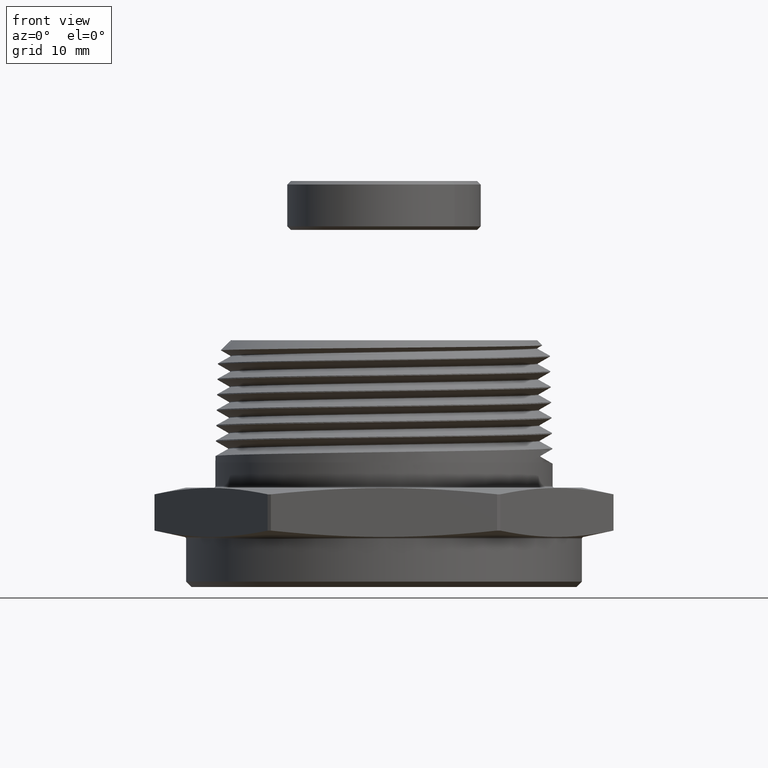
[diagram: clean part render]
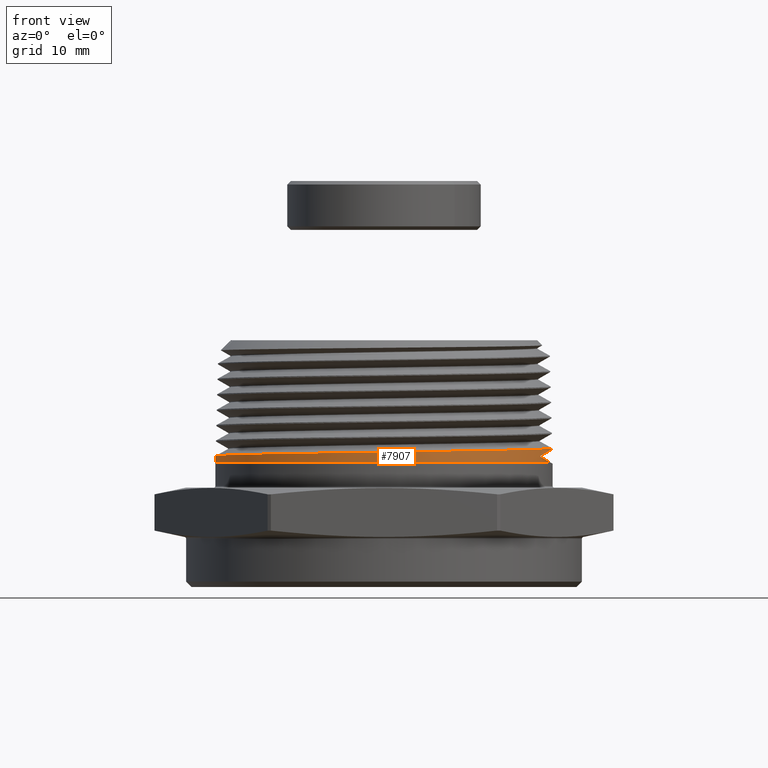
[diagram: same view with one face highlighted and labeled with its STEP entity id]
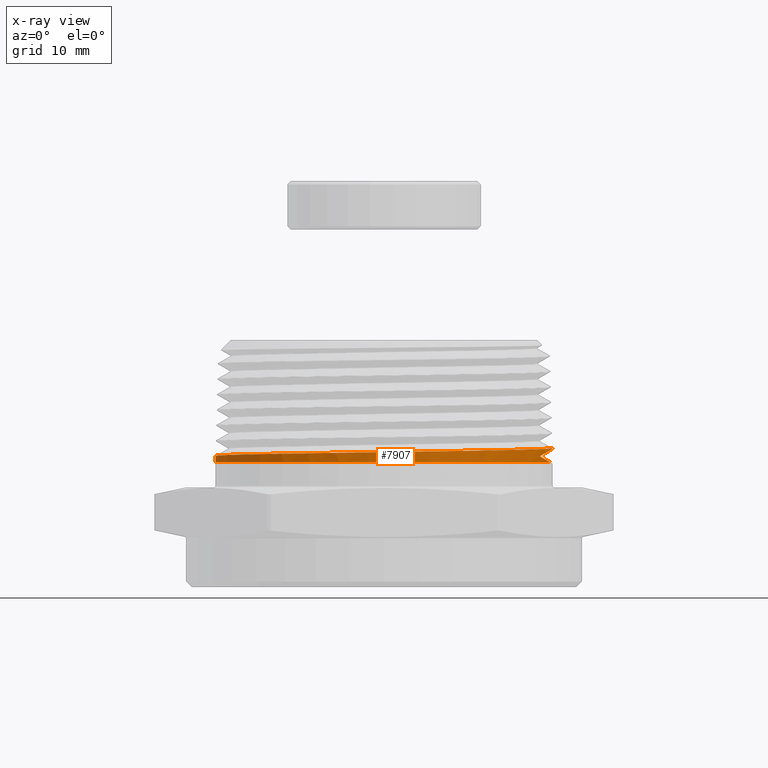
[diagram: x-ray of the same camera — body ghosted, the highlighted face saturated]
A machine part, front view. The second image highlights one B-rep face of the part: STEP entity #7907.
The next image is the same camera in x-ray: the body ghosted, the highlighted face saturated — about 0% of this face is hidden behind the body in this view.
In plain terms, the highlighted conical surface has half-angle 1.47 deg.
Its self-contained STEP definition (entity closure, byte-faithful):
#74 = AXIS2_PLACEMENT_3D ( 'NONE', #8029, #8030, #8031 ) ;
#364 = CARTESIAN_POINT ( 'NONE',  ( 0.9370334692849249200, -0.1564233916006743700, 0.4222118300598746700 ) ) ;
#365 = CARTESIAN_POINT ( 'NONE',  ( 0.8811025199133273300, -0.3527342361314566600, 0.4578522102968981000 ) ) ;
#368 = CARTESIAN_POINT ( 'NONE',  ( 0.9480928721711018300, 1.814332495531231500E-015, 0.4965291082060321900 ) ) ;
#369 = CARTESIAN_POINT ( 'NONE',  ( -0.9490792180391111100, -1.041605838605298400E-014, 0.4580930164504475300 ) ) ;
#374 = CARTESIAN_POINT ( 'NONE',  ( 0.9479634355445284400, 7.038803397923921700E-014, 0.5015730164504506000 ) ) ;
#1328 = CARTESIAN_POINT ( 'NONE',  ( -0.9499999999999999600, 0.0000000000000000000, 0.4222118300598746700 ) ) ;
#1345 = CARTESIAN_POINT ( 'NONE',  ( 0.8811025199133273300, -0.3529653853542194500, 0.4545035787355980500 ) ) ;
#1496 = EDGE_CURVE ( 'NONE', #2173, #2168, #8104, .T. ) ;
#1497 = EDGE_CURVE ( 'NONE', #2168, #5847, #7771, .T. ) ;
#1498 = EDGE_CURVE ( 'NONE', #5847, #2163, #7778, .T. ) ;
#1499 = EDGE_CURVE ( 'NONE', #5850, #2163, #2339, .T. ) ;
#1500 = EDGE_CURVE ( 'NONE', #2164, #5850, #2342, .T. ) ;
#1501 = EDGE_CURVE ( 'NONE', #2167, #2164, #2341, .T. ) ;
#1570 = EDGE_LOOP ( 'NONE', ( #1605, #1606, #1607, #1608, #1609, #1610, #1611 ) ) ;
#1605 = ORIENTED_EDGE ( 'NONE', *, *, #5768, .F. ) ;
#1606 = ORIENTED_EDGE ( 'NONE', *, *, #1496, .T. ) ;
#1607 = ORIENTED_EDGE ( 'NONE', *, *, #1497, .T. ) ;
#1608 = ORIENTED_EDGE ( 'NONE', *, *, #1498, .T. ) ;
#1609 = ORIENTED_EDGE ( 'NONE', *, *, #1499, .F. ) ;
#1610 = ORIENTED_EDGE ( 'NONE', *, *, #1500, .F. ) ;
#1611 = ORIENTED_EDGE ( 'NONE', *, *, #1501, .F. ) ;
#1667 = FACE_OUTER_BOUND ( 'NONE', #1570, .T. ) ;
#1672 = CONICAL_SURFACE ( 'NONE', #3030, 0.9531493628266519700, 0.02565634000430927100 ) ;
#2163 = VERTEX_POINT ( 'NONE', #364 ) ;
#2164 = VERTEX_POINT ( 'NONE', #365 ) ;
#2167 = VERTEX_POINT ( 'NONE', #368 ) ;
#2168 = VERTEX_POINT ( 'NONE', #369 ) ;
#2173 = VERTEX_POINT ( 'NONE', #374 ) ;
#2339 =( BOUNDED_CURVE ( )  B_SPLINE_CURVE ( 3, ( #8032, #8027, #8028, #8033 ),
 .UNSPECIFIED., .F., .T. ) 
 B_SPLINE_CURVE_WITH_KNOTS ( ( 4, 4 ),
 ( 5.896617983576278200, 6.115318233201747900 ),
 .UNSPECIFIED. ) 
 CURVE ( )  GEOMETRIC_REPRESENTATION_ITEM ( )  RATIONAL_B_SPLINE_CURVE ( ( 1.000000000000000000, 0.9960181535019341200, 0.9960181535019341200, 1.000000000000000000 ) ) 
 REPRESENTATION_ITEM ( '' )  );
#2341 =( BOUNDED_CURVE ( )  B_SPLINE_CURVE ( 3, ( #8037, #7965, #8039, #8040 ),
 .UNSPECIFIED., .F., .T. ) 
 B_SPLINE_CURVE_WITH_KNOTS ( ( 4, 4 ),
 ( 3.141592653589793100, 3.516916768192015900 ),
 .UNSPECIFIED. ) 
 CURVE ( )  GEOMETRIC_REPRESENTATION_ITEM ( )  RATIONAL_B_SPLINE_CURVE ( ( 1.000000000000000000, 0.9882953947900396900, 0.9882953947900396900, 1.000000000000000000 ) ) 
 REPRESENTATION_ITEM ( '' )  );
#2342 = B_SPLINE_CURVE_WITH_KNOTS ( 'NONE', 3,
 ( #8034, #8026, #8035, #8036 ),
 .UNSPECIFIED., .F., .F.,
 ( 4, 4 ),
 ( 0.04339158819139628300, 0.04347683535997758100 ),
 .UNSPECIFIED. ) ;
#2610 = CARTESIAN_POINT ( 'NONE',  ( 0.9531493628266519700, 1.167271316294998500E-016, 0.2994869294921574900 ) ) ;
#2670 = DIRECTION ( 'NONE',  ( 0.02565352539212768100, 3.141650775831452000E-018, -0.9996708941621514900 ) ) ;
#3030 = AXIS2_PLACEMENT_3D ( 'NONE', #3589, #3590, #3588 ) ;
#3588 = DIRECTION ( 'NONE',  ( -1.000000000000000000, 0.0000000000000000000, 0.0000000000000000000 ) ) ;
#3589 = CARTESIAN_POINT ( 'NONE',  ( 0.0000000000000000000, 0.0000000000000000000, 0.2994869294921574900 ) ) ;
#3590 = DIRECTION ( 'NONE',  ( -0.0000000000000000000, -0.0000000000000000000, -1.000000000000000000 ) ) ;
#5768 = EDGE_CURVE ( 'NONE', #2173, #2167, #7581, .T. ) ;
#5847 = VERTEX_POINT ( 'NONE', #1328 ) ;
#5850 = VERTEX_POINT ( 'NONE', #1345 ) ;
#7581 = LINE ( 'NONE', #2610, #7585 ) ;
#7585 = VECTOR ( 'NONE', #2670, 39.37007874015748100 ) ;
#7771 = LINE ( 'NONE', #7967, #7777 ) ;
#7777 = VECTOR ( 'NONE', #8025, 39.37007874015748100 ) ;
#7778 = CIRCLE ( 'NONE', #74, 0.9499999999999999600 ) ;
#7907 = ADVANCED_FACE ( 'NONE', ( #1667 ), #1672, .T. ) ;
#7965 = CARTESIAN_POINT ( 'NONE',  ( 0.9480928721711019400, -0.1210966654003102600, 0.4965291082060321300 ) ) ;
#7966 = CARTESIAN_POINT ( 'NONE',  ( 0.9479634355445284400, 7.038803397923921700E-014, 0.5015730164504506000 ) ) ;
#7967 = CARTESIAN_POINT ( 'NONE',  ( -0.9531493628266519700, 0.0000000000000000000, 0.2994869294921574900 ) ) ;
#7968 = CARTESIAN_POINT ( 'NONE',  ( 0.9479869121601384200, -0.06266101186132626300, 0.5006581757431641800 ) ) ;
#7969 = CARTESIAN_POINT ( 'NONE',  ( 0.9418527134335968900, -0.1243218958205966900, 0.4997579124095685200 ) ) ;
#7970 = CARTESIAN_POINT ( 'NONE',  ( 0.9238024216960831800, -0.2152505345175588200, 0.4984045664734450500 ) ) ;
#7971 = CARTESIAN_POINT ( 'NONE',  ( 0.9162998900546316400, -0.2453048386581645500, 0.4979507516940946400 ) ) ;
#7972 = CARTESIAN_POINT ( 'NONE',  ( 0.8982568041374705500, -0.3048916045443763000, 0.4970418819935568100 ) ) ;
#7973 = CARTESIAN_POINT ( 'NONE',  ( 0.8876618478493572000, -0.3345156121959805300, 0.4965853369447610400 ) ) ;
#7974 = CARTESIAN_POINT ( 'NONE',  ( 0.8519543963909797000, -0.4206957367866616700, 0.4952235126908373600 ) ) ;
#7975 = CARTESIAN_POINT ( 'NONE',  ( 0.8228177569471282200, -0.4751846174321175400, 0.4943259607049206900 ) ) ;
#7976 = CARTESIAN_POINT ( 'NONE',  ( 0.7711946848358122200, -0.5525148409038873600, 0.4929688051631101500 ) ) ;
#7977 = CARTESIAN_POINT ( 'NONE',  ( 0.7525952394438513200, -0.5776282221721984500, 0.4925110426186065600 ) ) ;
#7978 = CARTESIAN_POINT ( 'NONE',  ( 0.7129099909803724400, -0.6259854126623388700, 0.4915979853628645300 ) ) ;
#7979 = CARTESIAN_POINT ( 'NONE',  ( 0.6920296266888952300, -0.6489950577920630100, 0.4911471903333133900 ) ) ;
#7980 = CARTESIAN_POINT ( 'NONE',  ( 0.6263743216082017200, -0.7146282421239409400, 0.4897921196170697500 ) ) ;
#7981 = CARTESIAN_POINT ( 'NONE',  ( 0.5786134291921895000, -0.7538880673106479500, 0.4888942055938567700 ) ) ;
#7982 = CARTESIAN_POINT ( 'NONE',  ( 0.5138094671035126100, -0.7972138465151136200, 0.4877565067744517600 ) ) ;
#7983 = CARTESIAN_POINT ( 'NONE',  ( 0.5005531165549359500, -0.8056108684834848400, 0.4875268787579765700 ) ) ;
#7984 = CARTESIAN_POINT ( 'NONE',  ( 0.4737497583301459300, -0.8216725070396335700, 0.4870697695064317700 ) ) ;
#7985 = CARTESIAN_POINT ( 'NONE',  ( 0.4602001848920467300, -0.8293421279236185000, 0.4868422190761747000 ) ) ;
#7986 = CARTESIAN_POINT ( 'NONE',  ( 0.4191160517288743400, -0.8512875921324065700, 0.4861624938263750500 ) ) ;
#7987 = CARTESIAN_POINT ( 'NONE',  ( 0.3911470956905019900, -0.8645025394403759200, 0.4857137489915880300 ) ) ;
#7988 = CARTESIAN_POINT ( 'NONE',  ( 0.3340683601044020000, -0.8881457703481803200, 0.4848121010588459800 ) ) ;
#7989 = CARTESIAN_POINT ( 'NONE',  ( 0.3049585735500991400, -0.8985740396946760900, 0.4843592718796710400 ) ) ;
#7990 = CARTESIAN_POINT ( 'NONE',  ( 0.2604268471327885200, -0.9120986545987912500, 0.4836801214992750800 ) ) ;
#7991 = CARTESIAN_POINT ( 'NONE',  ( 0.2454381774522544900, -0.9162532714416682400, 0.4834536233346007900 ) ) ;
#7992 = CARTESIAN_POINT ( 'NONE',  ( 0.2151662161296594700, -0.9238428284619298900, 0.4829992873852830800 ) ) ;
#7993 = CARTESIAN_POINT ( 'NONE',  ( 0.1998476741865346000, -0.9272832561043956600, 0.4827709292780109600 ) ) ;
#7994 = CARTESIAN_POINT ( 'NONE',  ( 0.1233000256291390800, -0.9424969358274523100, 0.4816319962622998000 ) ) ;
#7995 = CARTESIAN_POINT ( 'NONE',  ( 0.06174573773520190800, -0.9485057513869455900, 0.4807339781586944500 ) ) ;
#7996 = CARTESIAN_POINT ( 'NONE',  ( -0.03104656349371189000, -0.9485291689306260000, 0.4793800011544460700 ) ) ;
#7997 = CARTESIAN_POINT ( 'NONE',  ( -0.06205466246737483700, -0.9470279286401031000, 0.4789254301264623800 ) ) ;
#7998 = CARTESIAN_POINT ( 'NONE',  ( -0.1086863470399772200, -0.9424443743347149500, 0.4782417718044087400 ) ) ;
#7999 = CARTESIAN_POINT ( 'NONE',  ( -0.1242642728237426700, -0.9405226709933612900, 0.4780132426386636800 ) ) ;
#8000 = CARTESIAN_POINT ( 'NONE',  ( -0.1551159725128529500, -0.9359410460270725100, 0.4775592502661059100 ) ) ;
#8001 = CARTESIAN_POINT ( 'NONE',  ( -0.1704323075874012700, -0.9332779415460656900, 0.4773331610964464100 ) ) ;
#8002 = CARTESIAN_POINT ( 'NONE',  ( -0.2464755510716762600, -0.9181323163623311700, 0.4762017947281445000 ) ) ;
#8003 = CARTESIAN_POINT ( 'NONE',  ( -0.3056025892824982300, -0.9002113447936206400, 0.4753048137716818200 ) ) ;
#8004 = CARTESIAN_POINT ( 'NONE',  ( -0.3917190512001693700, -0.8645811748828915500, 0.4739451673991277300 ) ) ;
#8005 = CARTESIAN_POINT ( 'NONE',  ( -0.4201436410207394200, -0.8511476150244309300, 0.4734848902241710600 ) ) ;
#8006 = CARTESIAN_POINT ( 'NONE',  ( -0.4751077798273978800, -0.8217601903556712700, 0.4725756580473079400 ) ) ;
#8007 = CARTESIAN_POINT ( 'NONE',  ( -0.5016876481070852200, -0.8058118822912570000, 0.4721261598286952700 ) ) ;
#8008 = CARTESIAN_POINT ( 'NONE',  ( -0.5787865376606667900, -0.7542952775330760100, 0.4707733970155442100 ) ) ;
#8009 = CARTESIAN_POINT ( 'NONE',  ( -0.6266905421628226100, -0.7150908076916964200, 0.4698748353847525500 ) ) ;
#8010 = CARTESIAN_POINT ( 'NONE',  ( -0.6931030204910575400, -0.6487156858014754300, 0.4685051760700582000 ) ) ;
#8011 = CARTESIAN_POINT ( 'NONE',  ( -0.7140496668981583000, -0.6255873280823965900, 0.4680484064912937600 ) ) ;
#8012 = CARTESIAN_POINT ( 'NONE',  ( -0.7533587431343594700, -0.5776859447223831000, 0.4671445755443293100 ) ) ;
#8013 = CARTESIAN_POINT ( 'NONE',  ( -0.7717686350970759400, -0.5528653788290458500, 0.4666964974461082500 ) ) ;
#8014 = CARTESIAN_POINT ( 'NONE',  ( -0.8061199263255000000, -0.5014992637106445700, 0.4657951808037638100 ) ) ;
#8015 = CARTESIAN_POINT ( 'NONE',  ( -0.8220614008802200600, -0.4749537671044099000, 0.4653419420343411500 ) ) ;
#8016 = CARTESIAN_POINT ( 'NONE',  ( -0.8514249365198601800, -0.4201021305789124400, 0.4644344770158745400 ) ) ;
#8017 = CARTESIAN_POINT ( 'NONE',  ( -0.8648885539644730600, -0.3916639427328391100, 0.4639782905548578400 ) ) ;
#8018 = CARTESIAN_POINT ( 'NONE',  ( -0.9006203365428165900, -0.3054285610487311700, 0.4626168251502557600 ) ) ;
#8019 = CARTESIAN_POINT ( 'NONE',  ( -0.9185600875613013600, -0.2462940252641205000, 0.4617199010915446500 ) ) ;
#8020 = CARTESIAN_POINT ( 'NONE',  ( -0.9367636713997306000, -0.1551586535557967800, 0.4603646249350011900 ) ) ;
#8021 = CARTESIAN_POINT ( 'NONE',  ( -0.9413752969005838600, -0.1243208174867790100, 0.4599082785592467600 ) ) ;
#8022 = CARTESIAN_POINT ( 'NONE',  ( -0.9475454281101561800, -0.06201011858097490300, 0.4589951384766791700 ) ) ;
#8023 = CARTESIAN_POINT ( 'NONE',  ( -0.9490676336567006600, -0.03095605982777102600, 0.4585444386134736600 ) ) ;
#8024 = CARTESIAN_POINT ( 'NONE',  ( -0.9490792180391111100, -1.041605838605298400E-014, 0.4580930164504475300 ) ) ;
#8025 = DIRECTION ( 'NONE',  ( -0.02565352539212768100, 0.0000000000000000000, -0.9996708941621514900 ) ) ;
#8026 = CARTESIAN_POINT ( 'NONE',  ( 0.8811025199133273300, -0.3528113075086268800, 0.4567360015174866700 ) ) ;
#8027 = CARTESIAN_POINT ( 'NONE',  ( 0.9068879692895330800, -0.2896248769014272400, 0.4396163425970698900 ) ) ;
#8028 = CARTESIAN_POINT ( 'NONE',  ( 0.9256061520103826500, -0.2238489694167038700, 0.4288093947644467900 ) ) ;
#8029 = CARTESIAN_POINT ( 'NONE',  ( 0.0000000000000000000, 0.0000000000000000000, 0.4222118300598746700 ) ) ;
#8030 = DIRECTION ( 'NONE',  ( 0.0000000000000000000, 0.0000000000000000000, 1.000000000000000000 ) ) ;
#8031 = DIRECTION ( 'NONE',  ( -1.000000000000000000, 0.0000000000000000000, 0.0000000000000000000 ) ) ;
#8032 = CARTESIAN_POINT ( 'NONE',  ( 0.8811025199133273300, -0.3529653853542194500, 0.4545035787355980500 ) ) ;
#8033 = CARTESIAN_POINT ( 'NONE',  ( 0.9370334692849249200, -0.1564233916006743700, 0.4222118300598746700 ) ) ;
#8034 = CARTESIAN_POINT ( 'NONE',  ( 0.8811025199133273300, -0.3527342361314566600, 0.4578522102968981000 ) ) ;
#8035 = CARTESIAN_POINT ( 'NONE',  ( 0.8811025199133273300, -0.3528883572524513800, 0.4556197907497563400 ) ) ;
#8036 = CARTESIAN_POINT ( 'NONE',  ( 0.8811025199133273300, -0.3529653853542194500, 0.4545035787355980500 ) ) ;
#8037 = CARTESIAN_POINT ( 'NONE',  ( 0.9480928721711018300, 1.814332495531231500E-015, 0.4965291082060321900 ) ) ;
#8039 = CARTESIAN_POINT ( 'NONE',  ( 0.9254982941360518900, -0.2400672478094925400, 0.4834841224952699000 ) ) ;
#8040 = CARTESIAN_POINT ( 'NONE',  ( 0.8811025199133273300, -0.3527342361314566600, 0.4578522102968981000 ) ) ;
#8104 = B_SPLINE_CURVE_WITH_KNOTS ( 'NONE', 3,
 ( #7966, #7968, #7969, #7970, #7971, #7972, #7973, #7974, #7975, #7976, #7977, #7978, #7979, #7980, #7981, #7982, #7983, #7984, #7985, #7986, #7987, #7988, #7989, #7990, #7991, #7992, #7993, #7994, #7995, #7996, #7997, #7998, #7999, #8000, #8001, #8002, #8003, #8004, #8005, #8006, #8007, #8008, #8009, #8010, #8011, #8012, #8013, #8014, #8015, #8016, #8017, #8018, #8019, #8020, #8021, #8022, #8023, #8024 ),
 .UNSPECIFIED., .F., .F.,
 ( 4, 2, 2, 2, 2, 2, 2, 2, 2, 2, 2, 2, 2, 2, 2, 2, 2, 2, 2, 2, 2, 2, 2, 2, 2, 2, 2, 2, 4 ),
 ( 0.9337708013834793400, 0.9385295966405311500, 0.9409089942690571600, 0.9432883918975830700, 0.9480471871546348700, 0.9504265847831608900, 0.9528059824116867900, 0.9575647776687386000, 0.9587544764830016100, 0.9599441752972646100, 0.9623235729257905200, 0.9647029705543164200, 0.9658926693685794300, 0.9670823681828423200, 0.9718411634398942400, 0.9742205610684201400, 0.9754102598826830400, 0.9765999586969460500, 0.9813587539539979600, 0.9837381515825238700, 0.9861175492110497700, 0.9908763444681016900, 0.9932557420966275900, 0.9956351397251535000, 0.9980145373536795100, 1.000393934982205300, 1.005152730239257300, 1.007532127867783100, 1.009911525496309100 ),
 .UNSPECIFIED. ) ;